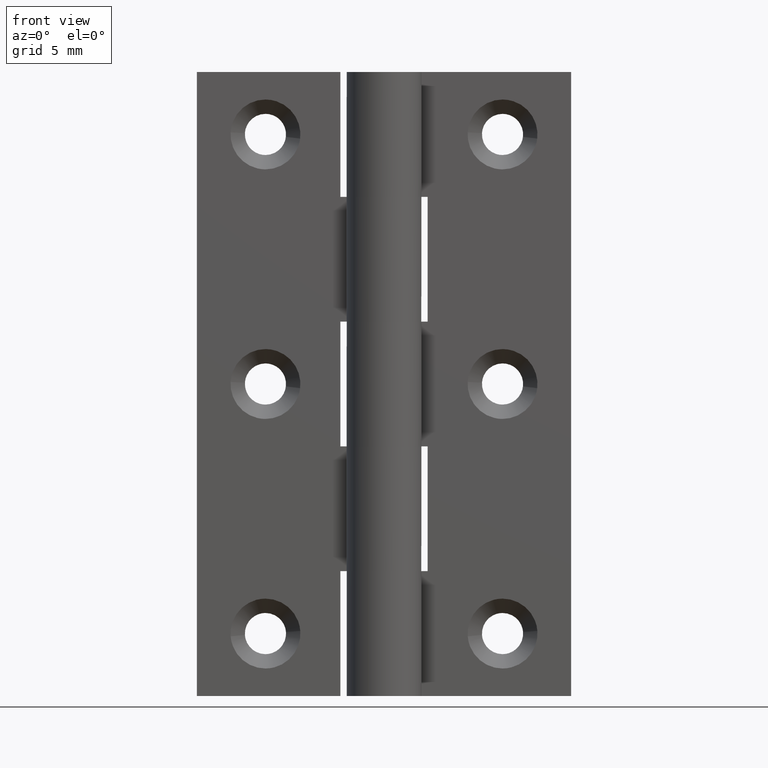
[diagram: clean part render]
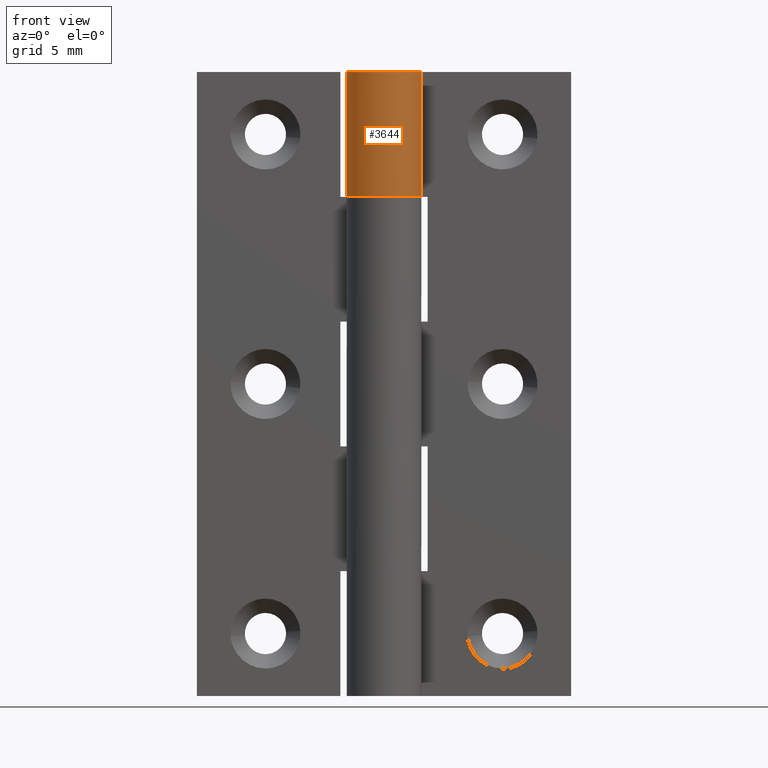
[diagram: same view with one face highlighted and labeled with its STEP entity id]
A machine part, front view. The second image highlights one B-rep face of the part: STEP entity #3644.
In plain terms, the highlighted face is a freeform B-spline surface patch.
Its self-contained STEP definition (entity closure, byte-faithful):
#3395=CARTESIAN_POINT('',(2.626309197333780,1.450000000000000,40.0));
#3396=VERTEX_POINT('',#3395);
#3402=CARTESIAN_POINT('',(0.0,3.0,40.0));
#3403=VERTEX_POINT('',#3402);
#3404=CARTESIAN_POINT('',(0.0,3.0,40.0));
#3405=CARTESIAN_POINT('',(-2.290598042424809,3.000000000000000,40.000000000000007));
#3406=CARTESIAN_POINT('',(-2.894028888043301,0.790314364775724,40.0));
#3407=CARTESIAN_POINT('',(-3.497459733661795,-1.419371270448553,40.000000000000007));
#3408=CARTESIAN_POINT('',(-1.524795068197690,-2.583602136552763,40.0));
#3409=CARTESIAN_POINT('',(0.447869597266411,-3.747833002656972,40.000000000000007));
#3410=CARTESIAN_POINT('',(2.090650590886090,-2.151552952364325,40.0));
#3411=CARTESIAN_POINT('',(3.733431584505770,-0.555272902071677,40.000000000000007));
#3412=CARTESIAN_POINT('',(2.626309197333780,1.449999999999999,40.0));
#3420=(BOUNDED_CURVE()B_SPLINE_CURVE(2,(#3404,#3405,#3406,#3407,#3408,#3409,#3410,#3411,#3412),.UNSPECIFIED.,.F.,.U.)B_SPLINE_CURVE_WITH_KNOTS((3,2,2,2,3),(0.0,0.250000000000000,0.500000000000000,0.750000000000000,1.0),.UNSPECIFIED.)CURVE()GEOMETRIC_REPRESENTATION_ITEM()RATIONAL_B_SPLINE_CURVE((1.0,0.794807562115481,1.0,0.794807562115481,1.0,0.794807562115481,1.0,0.794807562115481,1.0))REPRESENTATION_ITEM(''));
#3421=EDGE_CURVE('',#3403,#3396,#3420,.T.);
#3474=CARTESIAN_POINT('',(0.0,3.0,50.0));
#3475=VERTEX_POINT('',#3474);
#3481=CARTESIAN_POINT('',(2.626309197333780,1.450000000000000,50.0));
#3482=VERTEX_POINT('',#3481);
#3483=CARTESIAN_POINT('',(2.626309197333780,1.450000000000000,50.0));
#3484=CARTESIAN_POINT('',(3.733431584505770,-0.555272902071675,50.000000000000007));
#3485=CARTESIAN_POINT('',(2.090650590886091,-2.151552952364324,50.0));
#3486=CARTESIAN_POINT('',(0.447869597266413,-3.747833002656972,50.000000000000007));
#3487=CARTESIAN_POINT('',(-1.524795068197689,-2.583602136552764,50.0));
#3488=CARTESIAN_POINT('',(-3.497459733661792,-1.419371270448555,50.000000000000007));
#3489=CARTESIAN_POINT('',(-2.894028888043301,0.790314364775722,50.0));
#3490=CARTESIAN_POINT('',(-2.290598042424809,3.000000000000000,50.000000000000007));
#3491=CARTESIAN_POINT('',(0.0,3.0,50.0));
#3499=(BOUNDED_CURVE()B_SPLINE_CURVE(2,(#3483,#3484,#3485,#3486,#3487,#3488,#3489,#3490,#3491),.UNSPECIFIED.,.F.,.U.)B_SPLINE_CURVE_WITH_KNOTS((3,2,2,2,3),(0.0,0.250000000000000,0.500000000000000,0.750000000000000,1.0),.UNSPECIFIED.)CURVE()GEOMETRIC_REPRESENTATION_ITEM()RATIONAL_B_SPLINE_CURVE((1.0,0.794807562115481,1.0,0.794807562115481,1.0,0.794807562115481,1.0,0.794807562115481,1.0))REPRESENTATION_ITEM(''));
#3500=EDGE_CURVE('',#3482,#3475,#3499,.T.);
#3608=CARTESIAN_POINT('',(2.584887481324576,1.522615088882112,39.749999999999993));
#3609=CARTESIAN_POINT('',(2.584887481324576,1.522615088882112,50.256250000000009));
#3610=CARTESIAN_POINT('',(4.454017153952614,-1.650537421576552,39.749999999999993));
#3611=CARTESIAN_POINT('',(4.454017153952614,-1.650537421576552,50.256250000000016));
#3612=CARTESIAN_POINT('',(0.968449136630486,-2.839384840024272,39.749999999999993));
#3613=CARTESIAN_POINT('',(0.968449136630486,-2.839384840024272,50.256250000000009));
#3614=CARTESIAN_POINT('',(-2.517118880691642,-4.028232258471992,39.749999999999993));
#3615=CARTESIAN_POINT('',(-2.517118880691642,-4.028232258471992,50.256250000000016));
#3616=CARTESIAN_POINT('',(-2.976562347997527,-0.374268070349911,39.749999999999993));
#3617=CARTESIAN_POINT('',(-2.976562347997527,-0.374268070349911,50.256250000000009));
#3618=CARTESIAN_POINT('',(-3.436005815303412,3.279696117772171,39.749999999999993));
#3619=CARTESIAN_POINT('',(-3.436005815303412,3.279696117772171,50.256250000000016));
#3620=CARTESIAN_POINT('',(0.235377287183536,2.990752001199384,39.749999999999993));
#3621=CARTESIAN_POINT('',(0.235377287183536,2.990752001199384,50.256250000000009));
#3629=(BOUNDED_SURFACE()B_SPLINE_SURFACE(1,2,((#3608,#3610,#3612,#3614,#3616,#3618,#3620),(#3609,#3611,#3613,#3615,#3617,#3619,#3621)),.UNSPECIFIED.,.F.,.F.,.U.)B_SPLINE_SURFACE_WITH_KNOTS((2,2),(3,2,2,3),(0.0,10.506250000000019),(0.0,5.702297214197750,11.404594428395500,17.106891642593251),.UNSPECIFIED.)GEOMETRIC_REPRESENTATION_ITEM()RATIONAL_B_SPLINE_SURFACE(((1.0,0.631578351302498,1.0,0.631578351302498,1.0,0.631578351302498,1.0),(1.0,0.631578351302498,1.0,0.631578351302498,1.0,0.631578351302498,1.0)))REPRESENTATION_ITEM('')SURFACE());
#3630=CARTESIAN_POINT('',(0.0,3.0,40.0));
#3631=CARTESIAN_POINT('',(0.0,3.0,50.0));
#3632=QUASI_UNIFORM_CURVE('',1,(#3630,#3631),.UNSPECIFIED.,.F.,.U.);
#3633=EDGE_CURVE('',#3403,#3475,#3632,.T.);
#3634=ORIENTED_EDGE('',*,*,#3633,.F.);
#3635=ORIENTED_EDGE('',*,*,#3421,.T.);
#3636=CARTESIAN_POINT('',(2.626309197333780,1.450000000000000,40.0));
#3637=CARTESIAN_POINT('',(2.626309197333780,1.450000000000000,50.0));
#3638=QUASI_UNIFORM_CURVE('',1,(#3636,#3637),.UNSPECIFIED.,.F.,.U.);
#3639=EDGE_CURVE('',#3396,#3482,#3638,.T.);
#3640=ORIENTED_EDGE('',*,*,#3639,.T.);
#3641=ORIENTED_EDGE('',*,*,#3500,.T.);
#3642=EDGE_LOOP('',(#3634,#3635,#3640,#3641));
#3643=FACE_OUTER_BOUND('',#3642,.T.);
#3644=ADVANCED_FACE('',(#3643),#3629,.T.);